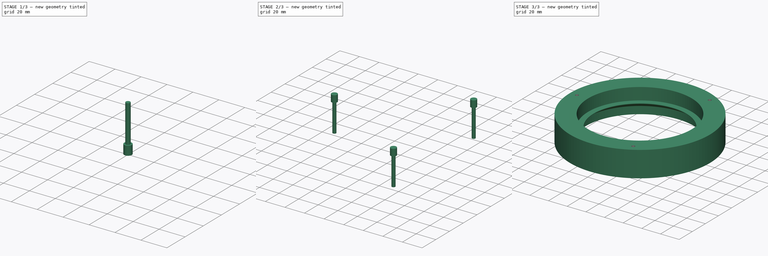
[diagram: build sequence overview — one tinted view per stage of 3, left to right]
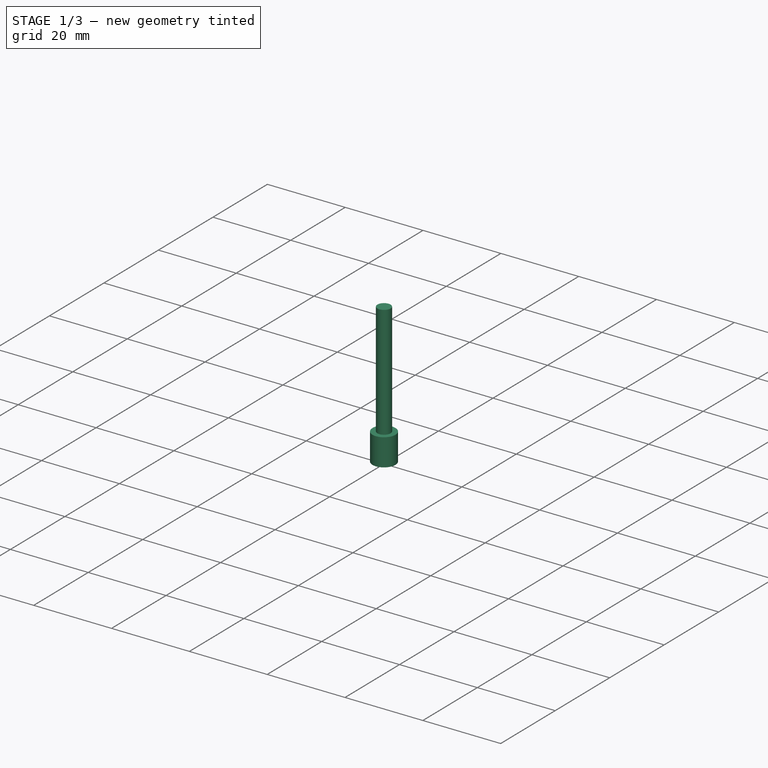
[diagram: stage 1 of 3 — iso view after this stage's code; geometry added in this stage tinted green]
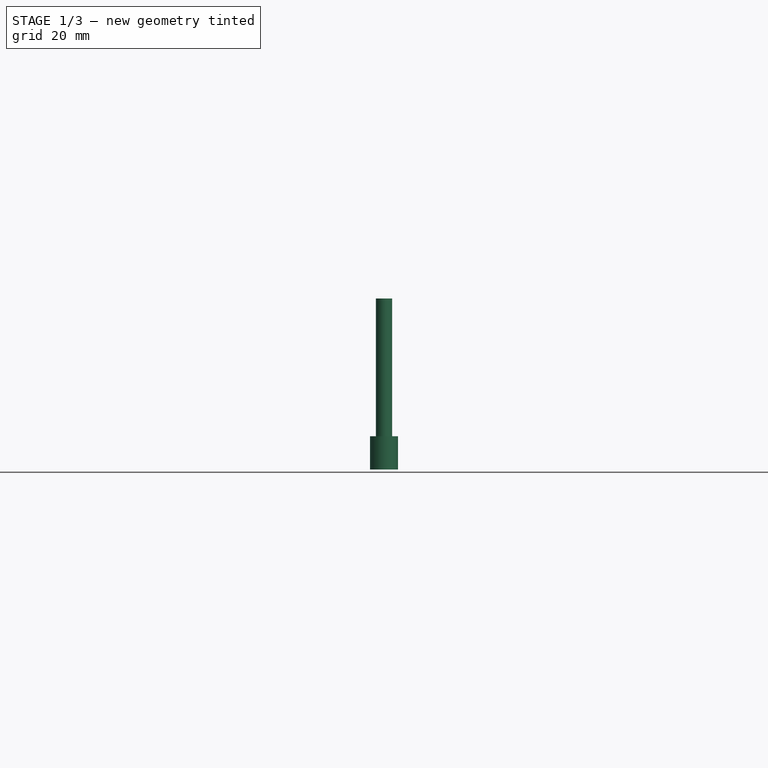
[diagram: stage 1 of 3 — front view after this stage's code; geometry added in this stage tinted green]
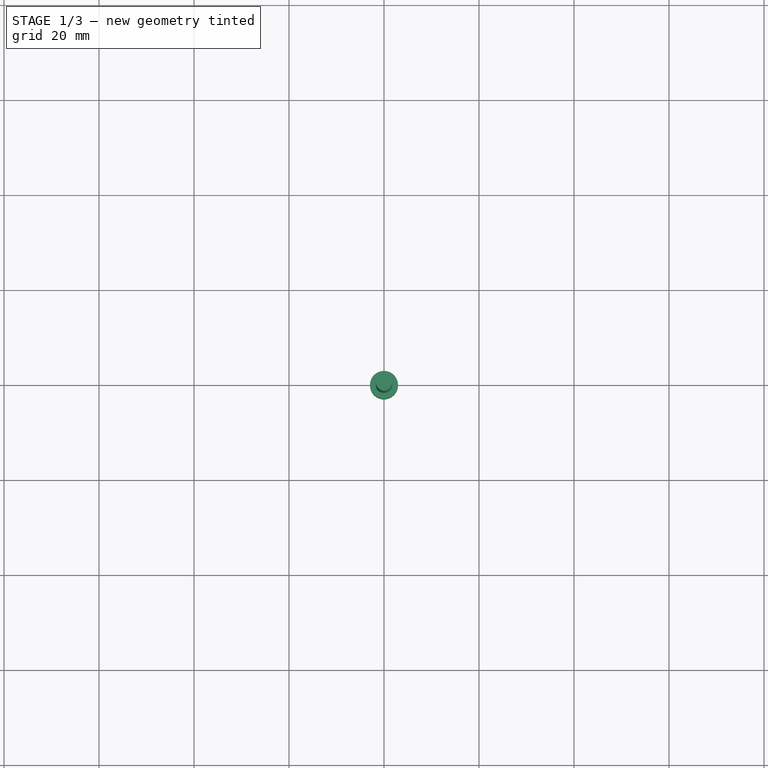
[diagram: stage 1 of 3 — top view after this stage's code; geometry added in this stage tinted green]
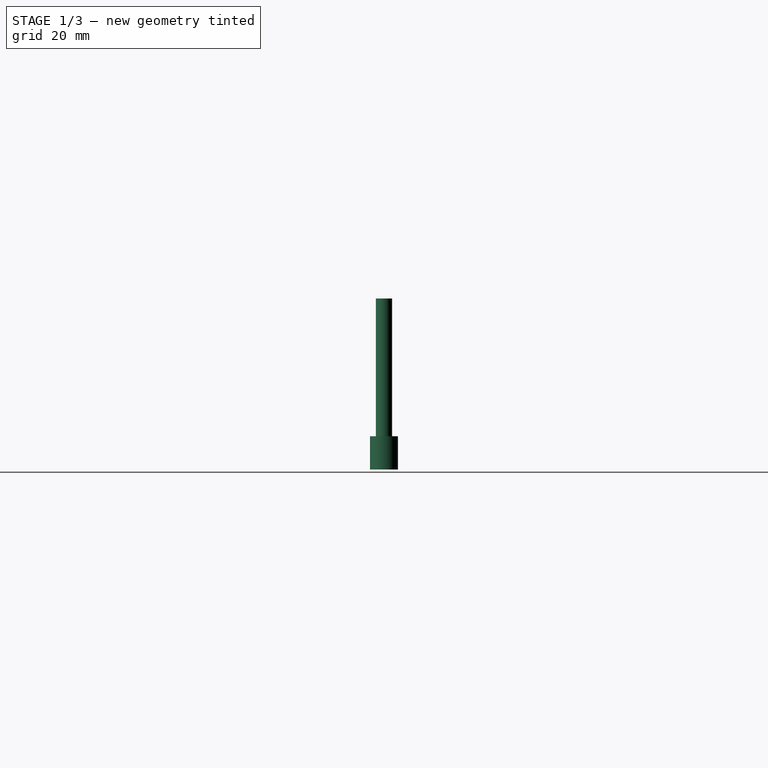
[diagram: stage 1 of 3 — right view after this stage's code; geometry added in this stage tinted green]
FCSTD DOCUMENT  (FreeCAD 0.16RUnknown)
Label: BaseTop-pruba
License: All rights reserved
LicenseURL: http://en.wikipedia.org/wiki/All_rights_reserved
objects: Part::Cylinder×2, Part::FeaturePython×2, Part::MultiFuse×1, Sketcher::SketchObject×1, PartDesign::Revolution×1, Part::Cut×1, App::DocumentObjectGroup×1
note: 9 computed .brp shape members not serialized (recipe doc carries the construction recipe); baked Part::Feature solids carry a one-line shape summary decoded from their .brp

FEATURE [Part::Cylinder] Cylinder  label="M3BoltHead"
  Angle = 360
  Height = 7
  Radius = 2.95
FEATURE [Part::Cylinder] Cylinder001  label="M3BoltBody"
  Angle = 360
  Height = 30
  Placement = pos=(0,0,6) rot=(0,0,1;0rad)
  Radius = 1.7
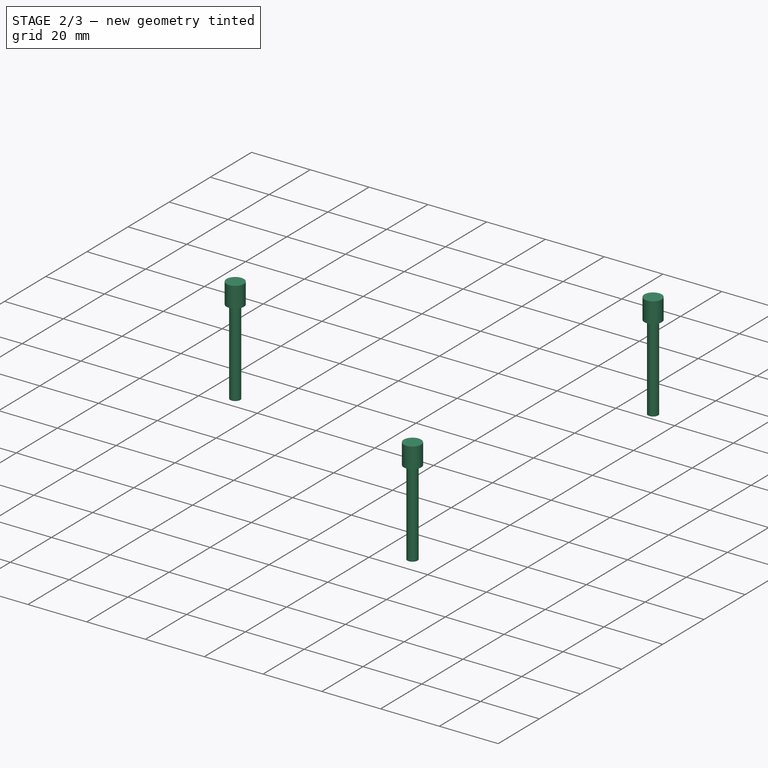
[diagram: stage 2 of 3 — iso view after this stage's code; geometry added in this stage tinted green]
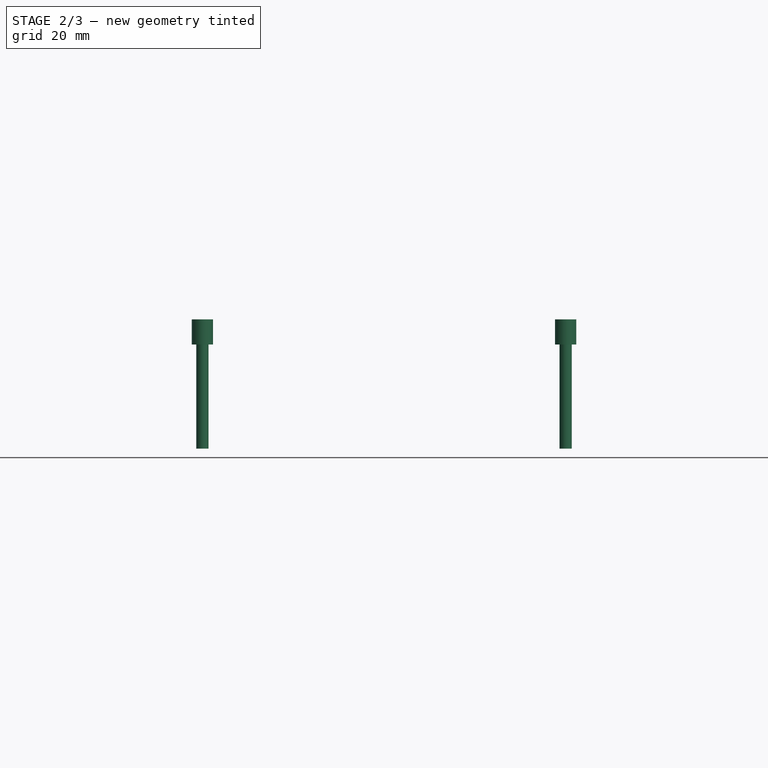
[diagram: stage 2 of 3 — front view after this stage's code; geometry added in this stage tinted green]
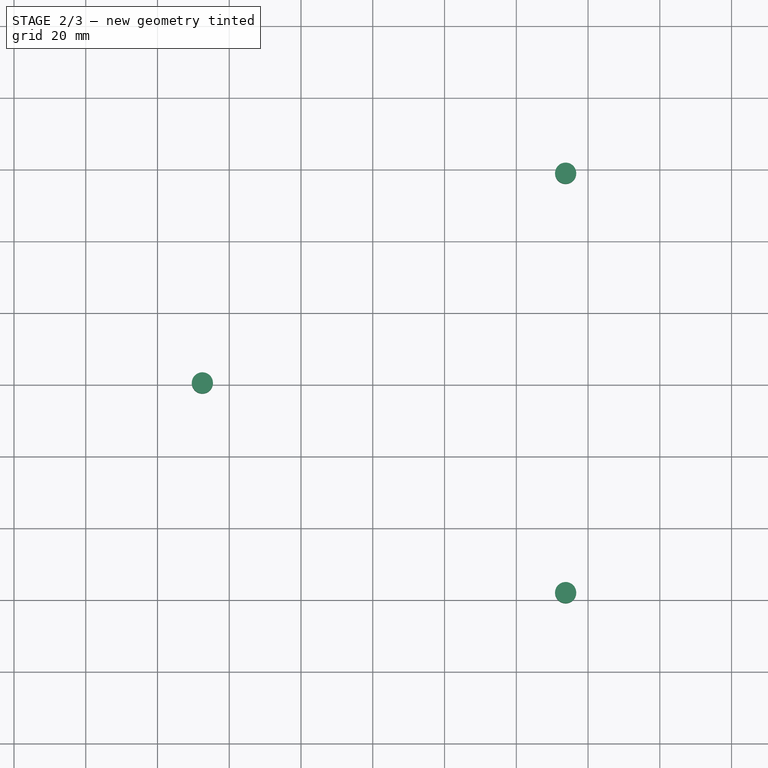
[diagram: stage 2 of 3 — top view after this stage's code; geometry added in this stage tinted green]
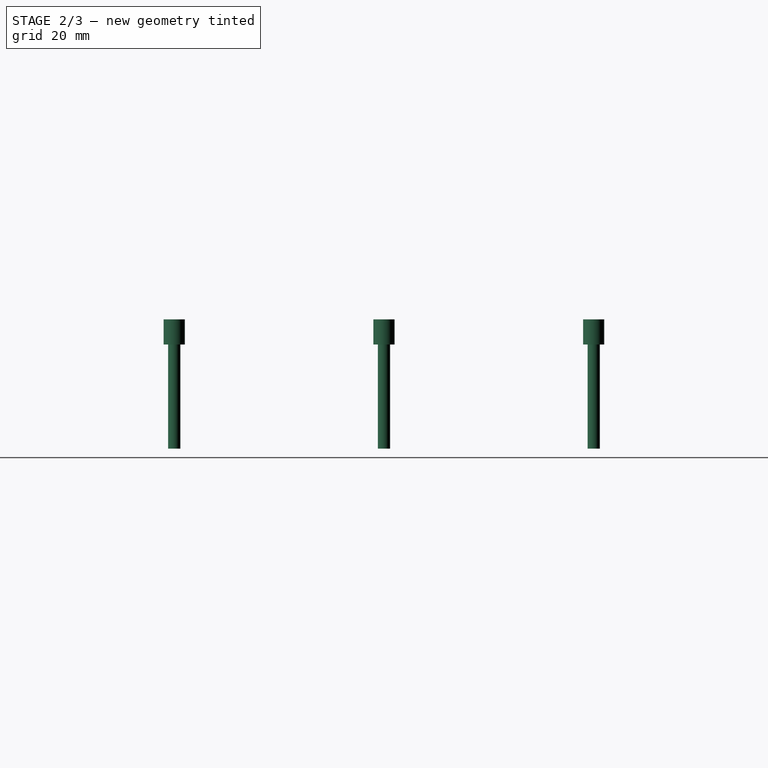
[diagram: stage 2 of 3 — right view after this stage's code; geometry added in this stage tinted green]
FEATURE [Part::MultiFuse] Fusion  label="M3Bolt"
  Shapes = -> [Cylinder001,Cylinder]
FEATURE [Part::FeaturePython] Clone393  label="Clone of M3Bolt128"  # Draft clone (typed FeaturePython)
  Objects = -> [Fusion]
  Placement = pos=(-67.5,0,35) rot=(0,1,0;3.14159rad)
  Scale = (1,1,1)
FEATURE [Part::FeaturePython] Array021  # Draft array (typed FeaturePython)
  Angle = 360
  ArrayType = 1
  Axis = (0,0,1)
  Base = -> Clone393
  Center = (0,0,0)
  Fuse = false
  IntervalAxis = (0,0,0)
  IntervalX = (1,0,0)
  IntervalY = (0,1,0)
  IntervalZ = (0,0,0)
  NumberPolar = 3
  NumberX = 2
  NumberY = 2
  NumberZ = 1
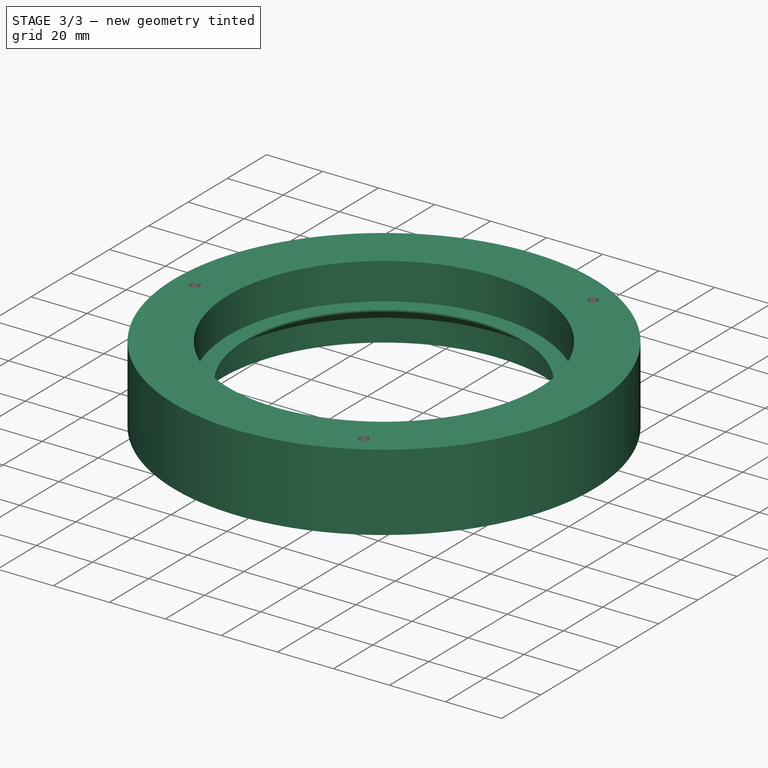
[diagram: stage 3 of 3 — iso view after this stage's code; geometry added in this stage tinted green]
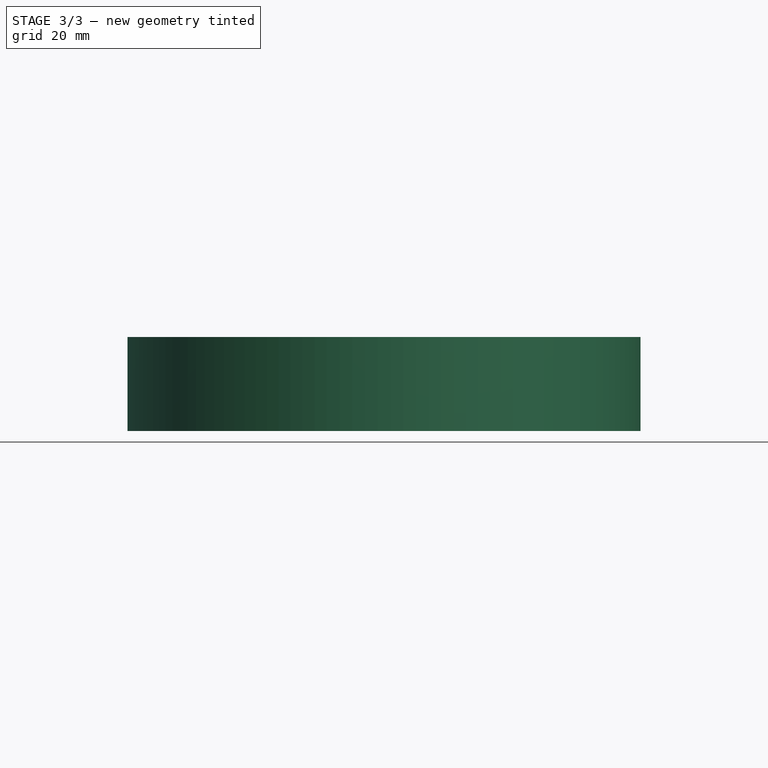
[diagram: stage 3 of 3 — front view after this stage's code; geometry added in this stage tinted green]
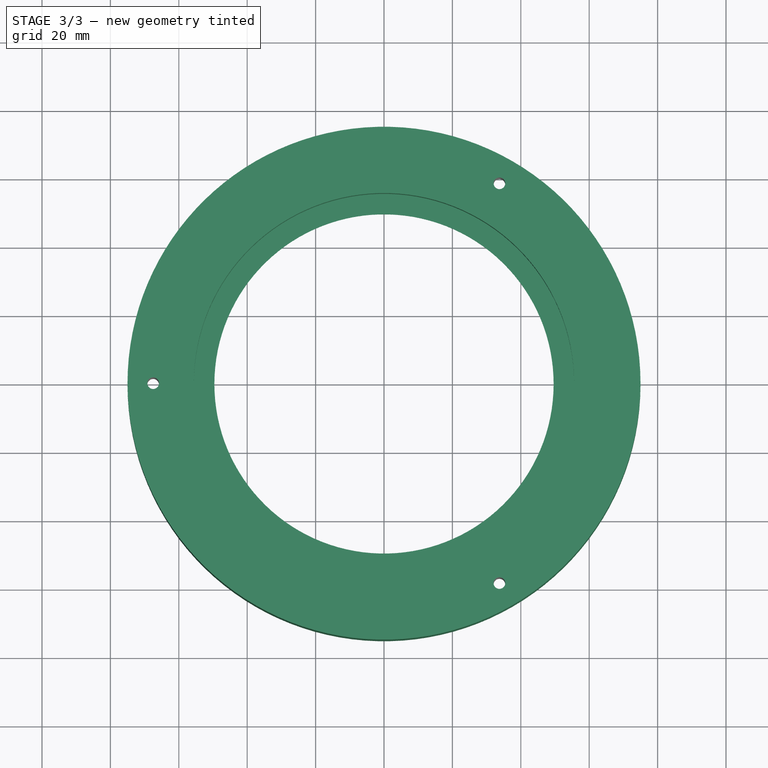
[diagram: stage 3 of 3 — top view after this stage's code; geometry added in this stage tinted green]
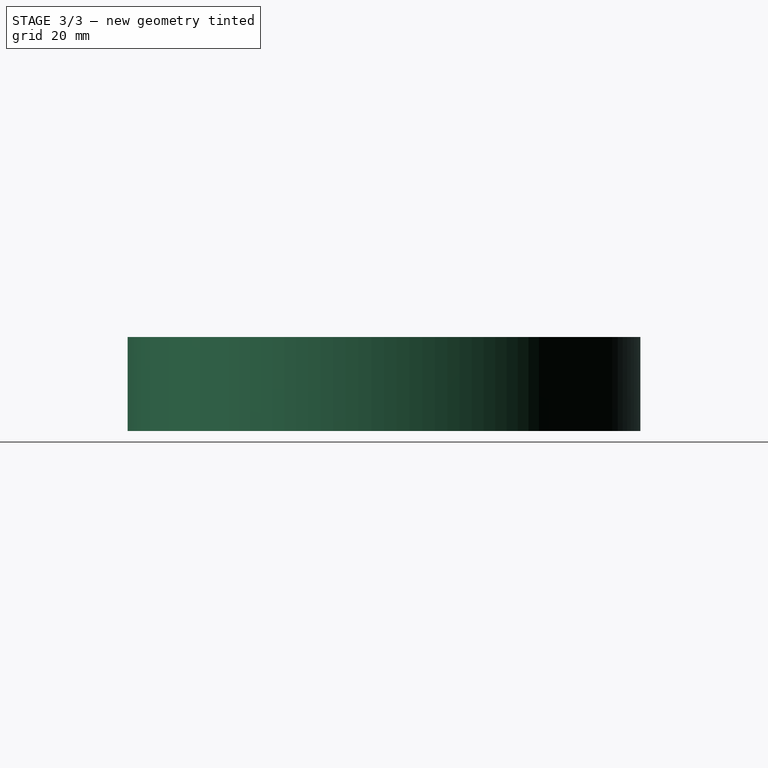
[diagram: stage 3 of 3 — right view after this stage's code; geometry added in this stage tinted green]
FEATURE [Sketcher::SketchObject] Sketch076
  Placement = pos=(0,0,0) rot=(1,0,0;1.5708rad)
  sketch-geometry (8):
    g0: LineSegment StartX=58.1689 StartY=0 StartZ=0 EndX=58.1689 EndY=8 EndZ=0
    g1: LineSegment StartX=58.1689 StartY=8 StartZ=0 EndX=49.6 EndY=14 EndZ=0
    g2: LineSegment StartX=49.6 StartY=14 StartZ=0 EndX=49.6 EndY=14.5 EndZ=0
    g3: LineSegment StartX=49.6 StartY=14.5 StartZ=0 EndX=55.6 EndY=14.5 EndZ=0
    g4: LineSegment StartX=55.6 StartY=14.5 StartZ=0 EndX=55.6 EndY=27.5 EndZ=0
    g5: LineSegment StartX=55.6 StartY=27.5 StartZ=0 EndX=75 EndY=27.5 EndZ=0
    g6: LineSegment StartX=75 StartY=27.5 StartZ=0 EndX=75 EndY=0 EndZ=0
    g7: LineSegment StartX=75 StartY=0 StartZ=0 EndX=58.1689 EndY=0 EndZ=0
  constraints (24):
    c: PointOnObject(g0,g-1)
    c: Vertical(g0)
    c: Coincident(g0,g1)
    c: Coincident(g1,g2)
    c: Vertical(g2)
    c: Coincident(g2,g3)
    c: Horizontal(g3)
    c: Coincident(g3,g4)
    c: Vertical(g4)
    c: Coincident(g4,g5)
    c: Horizontal(g5)
    c: Coincident(g5,g6)
    c: PointOnObject(g6,g-1)
    c: Vertical(g6)
    c: Coincident(g6,g7)
    c: Coincident(g7,g0)
    c: DistanceX(g-1,g6) = 75
    c: DistanceX(g-1,g4) = 55.6
    c: DistanceY(g4) = 13
    c: DistanceY(g2) = 0.5
    c: DistanceY(g1) = 6
    c: DistanceY(g6) = -27.5
    c: Angle(g-1,g1) = 2.53073
    c: DistanceX(g3) = 6
FEATURE [PartDesign::Revolution] Revolution021
  Angle = 360
  Axis = (0,0,1)
  Base = (0,0,0)
  Placement = pos=(0,0,0) rot=(1,0,0;1.5708rad)
  ReferenceAxis = -> Sketch076 [V_Axis]
  Reversed = true
  Sketch = -> Sketch076
FEATURE [Part::Cut] Cut128  label="BaseTop"
  Base = -> Revolution021
  Tool = -> Array021
FEATURE [App::DocumentObjectGroup] Group  label="Master"
  Group = -> [Fusion]
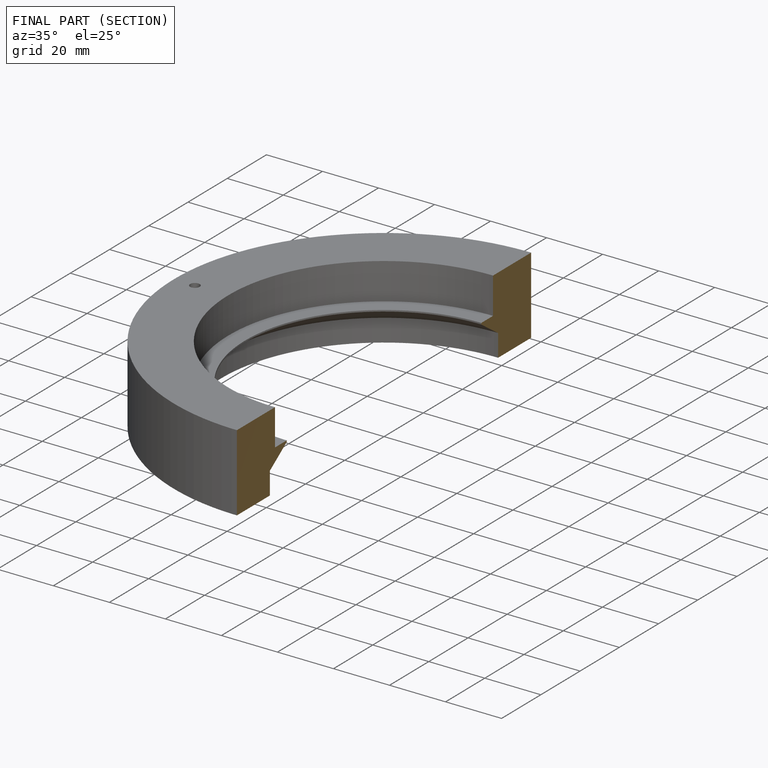
[diagram: finished part — half-section view (interior)]
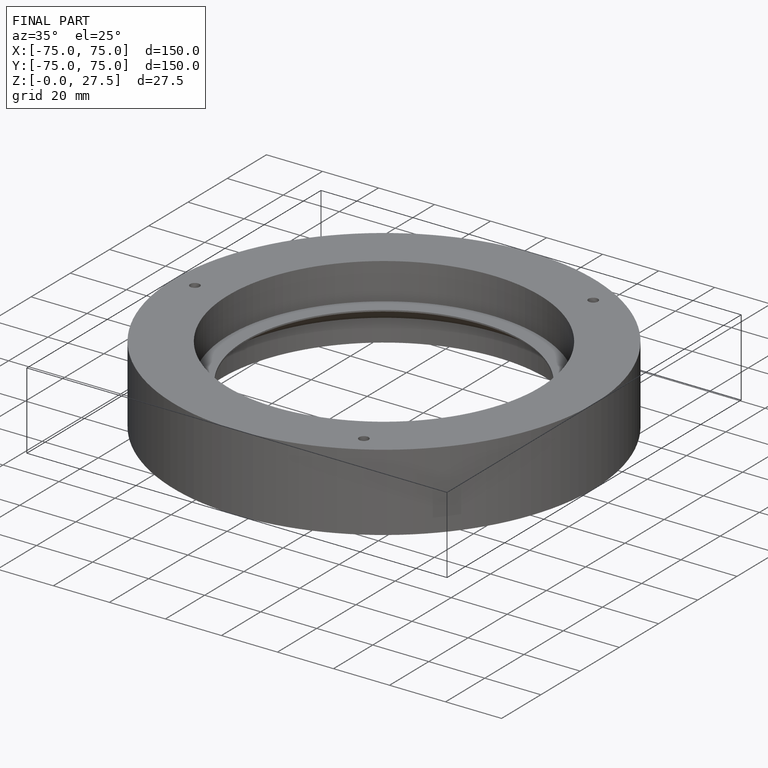
[diagram: finished part — iso view with bounding-box wireframe]
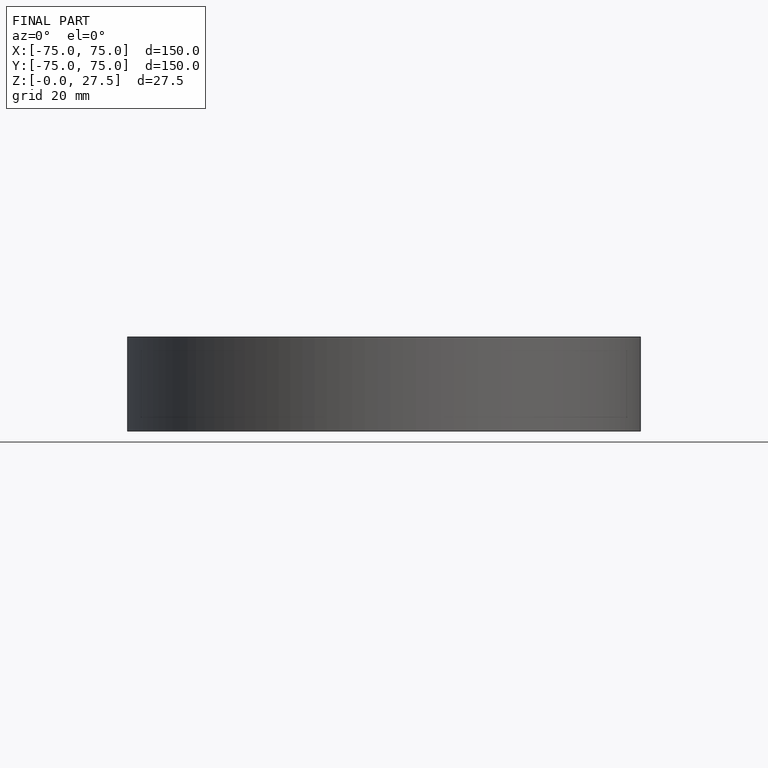
[diagram: finished part — front view with bounding-box wireframe]
